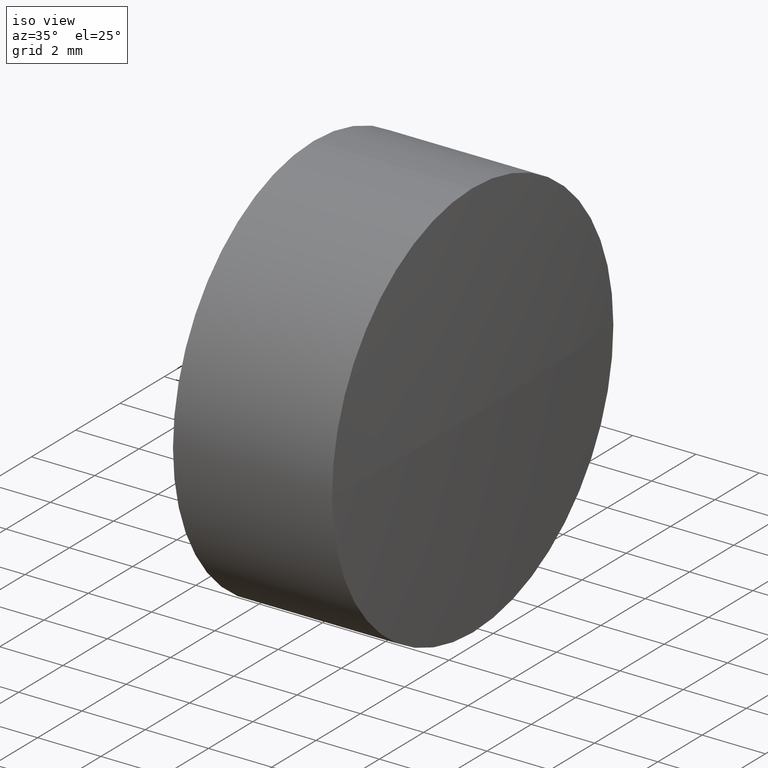
[diagram: clean part render]
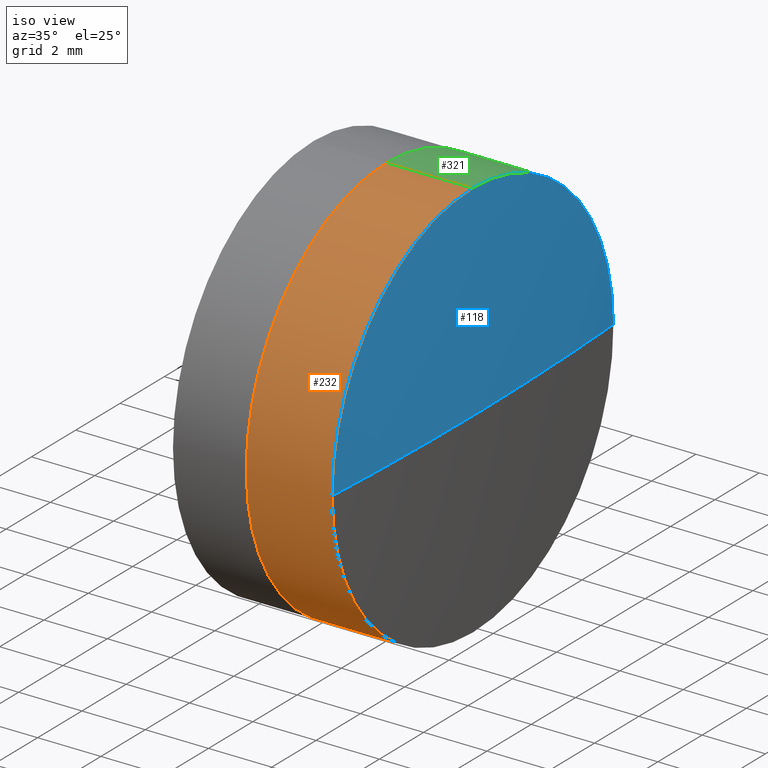
[diagram: same view with three faces highlighted in distinct colors, each labeled with its STEP entity id]
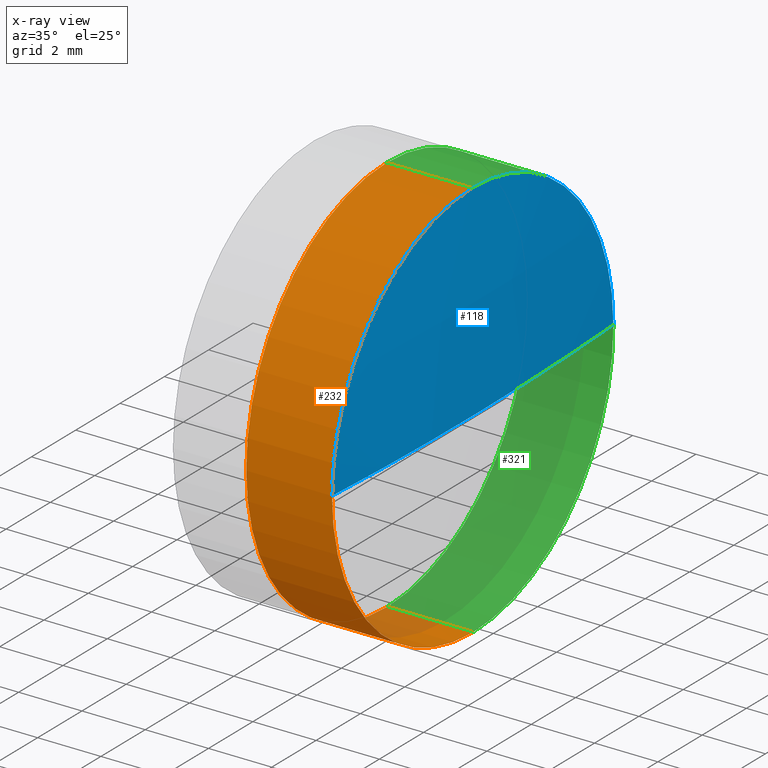
[diagram: x-ray of the same camera — body ghosted, the three highlighted faces saturated]
A machine part, iso view with three faces highlighted in distinct colors.
The next image is the same camera in x-ray (body ghosted, the three faces saturated) — at least one of them is partly hidden behind the body in this view.
Their STEP definitions:

[orange] entity #232 — the highlighted cylindrical surface (partial cylindrical patch) has radius 6.35 mm, axis along (-1, -0, -0).
#13 = AXIS2_PLACEMENT_3D ( 'NONE', #157, #184, #111 ) ;
#15 = DIRECTION ( 'NONE',  ( -1.000000000000000000, -2.232143574251894969E-18, -0.000000000000000000 ) ) ;
#16 = CIRCLE ( 'NONE', #96, 6.349999999999997868 ) ;
#28 = DIRECTION ( 'NONE',  ( -1.000000000000000000, -2.232143574251894969E-18, -0.000000000000000000 ) ) ;
#42 = VERTEX_POINT ( 'NONE', #152 ) ;
#76 = ORIENTED_EDGE ( 'NONE', *, *, #436, .T. ) ;
#81 = LINE ( 'NONE', #237, #393 ) ;
#82 = EDGE_CURVE ( 'NONE', #136, #261, #177, .T. ) ;
#94 = CARTESIAN_POINT ( 'NONE',  ( -40.11746922928519155, 29.21329600025099893, 6.349954804012000409 ) ) ;
#96 = AXIS2_PLACEMENT_3D ( 'NONE', #272, #402, #305 ) ;
#111 = DIRECTION ( 'NONE',  ( 0.000000000000000000, -0.003772917464198976330, 0.9999928825215749217 ) ) ;
#122 = ORIENTED_EDGE ( 'NONE', *, *, #242, .T. ) ;
#134 = CARTESIAN_POINT ( 'NONE',  ( -40.11746922928519155, 29.26121205204632858, -6.349954804012000409 ) ) ;
#136 = VERTEX_POINT ( 'NONE', #271 ) ;
#152 = CARTESIAN_POINT ( 'NONE',  ( -42.82922239068432191, 29.26121205204632858, -6.349954804012000409 ) ) ;
#153 = EDGE_CURVE ( 'NONE', #42, #136, #16, .T. ) ;
#157 = CARTESIAN_POINT ( 'NONE',  ( -40.11746922928519155, 29.23725402614866553, 0.000000000000000000 ) ) ;
#174 = DIRECTION ( 'NONE',  ( 0.000000000000000000, -0.003772917464198976330, 0.9999928825215749217 ) ) ;
#175 = LINE ( 'NONE', #283, #420 ) ;
#177 = CIRCLE ( 'NONE', #342, 6.349999999999997868 ) ;
#184 = DIRECTION ( 'NONE',  ( -1.000000000000000000, -2.232143574251894969E-18, -0.000000000000000000 ) ) ;
#197 = DIRECTION ( 'NONE',  ( 0.000000000000000000, -0.003772917464198976330, 0.9999928825215749217 ) ) ;
#202 = AXIS2_PLACEMENT_3D ( 'NONE', #210, #344, #174 ) ;
#210 = CARTESIAN_POINT ( 'NONE',  ( -40.11746922928519155, 29.23725402614866553, 0.000000000000000000 ) ) ;
#229 = FACE_OUTER_BOUND ( 'NONE', #349, .T. ) ;
#232 = ADVANCED_FACE ( 'NONE', ( #229 ), #404, .T. ) ;
#234 = CARTESIAN_POINT ( 'NONE',  ( -40.11746922928519865, 22.88729922213665091, -0.02395802589766392668 ) ) ;
#237 = CARTESIAN_POINT ( 'NONE',  ( -41.92046947869102524, 29.21329600025099893, 6.349954804011998633 ) ) ;
#238 = CIRCLE ( 'NONE', #13, 6.349999999999997868 ) ;
#242 = EDGE_CURVE ( 'NONE', #281, #261, #81, .T. ) ;
#255 = CARTESIAN_POINT ( 'NONE',  ( -42.82922239068432191, 29.23725402614866553, 0.000000000000000000 ) ) ;
#259 = ORIENTED_EDGE ( 'NONE', *, *, #371, .F. ) ;
#261 = VERTEX_POINT ( 'NONE', #373 ) ;
#270 = CARTESIAN_POINT ( 'NONE',  ( -41.92046947869102524, 29.23725402614866553, 0.000000000000000000 ) ) ;
#271 = CARTESIAN_POINT ( 'NONE',  ( -42.82922239068432191, 22.88729922213666157, -0.02395802589766386423 ) ) ;
#272 = CARTESIAN_POINT ( 'NONE',  ( -42.82922239068432191, 29.23725402614866553, 0.000000000000000000 ) ) ;
#281 = VERTEX_POINT ( 'NONE', #94 ) ;
#283 = CARTESIAN_POINT ( 'NONE',  ( -41.92046947869102524, 29.26121205204632858, -6.349954804011998633 ) ) ;
#284 = VERTEX_POINT ( 'NONE', #234 ) ;
#305 = DIRECTION ( 'NONE',  ( 0.000000000000000000, -0.003772917464198976330, 0.9999928825215749217 ) ) ;
#327 = CIRCLE ( 'NONE', #202, 6.349999999999997868 ) ;
#328 = DIRECTION ( 'NONE',  ( 0.000000000000000000, -0.003772917464198976330, 0.9999928825215749217 ) ) ;
#341 = DIRECTION ( 'NONE',  ( -1.000000000000000000, -2.232143574251894969E-18, -0.000000000000000000 ) ) ;
#342 = AXIS2_PLACEMENT_3D ( 'NONE', #255, #15, #328 ) ;
#344 = DIRECTION ( 'NONE',  ( -1.000000000000000000, -2.232143574251894969E-18, -0.000000000000000000 ) ) ;
#347 = VERTEX_POINT ( 'NONE', #134 ) ;
#349 = EDGE_LOOP ( 'NONE', ( #259, #76, #412, #122, #389, #417 ) ) ;
#367 = EDGE_CURVE ( 'NONE', #284, #281, #327, .T. ) ;
#371 = EDGE_CURVE ( 'NONE', #347, #42, #175, .T. ) ;
#373 = CARTESIAN_POINT ( 'NONE',  ( -42.82922239068432191, 29.21329600025099893, 6.349954804012000409 ) ) ;
#389 = ORIENTED_EDGE ( 'NONE', *, *, #82, .F. ) ;
#393 = VECTOR ( 'NONE', #410, 1000.000000000000000 ) ;
#402 = DIRECTION ( 'NONE',  ( -1.000000000000000000, -2.232143574251894969E-18, -0.000000000000000000 ) ) ;
#404 = CYLINDRICAL_SURFACE ( 'NONE', #445, 6.349999999999997868 ) ;
#410 = DIRECTION ( 'NONE',  ( -1.000000000000000000, -2.232143574251894969E-18, -0.000000000000000000 ) ) ;
#412 = ORIENTED_EDGE ( 'NONE', *, *, #367, .T. ) ;
#417 = ORIENTED_EDGE ( 'NONE', *, *, #153, .F. ) ;
#420 = VECTOR ( 'NONE', #341, 1000.000000000000000 ) ;
#436 = EDGE_CURVE ( 'NONE', #347, #284, #238, .T. ) ;
#445 = AXIS2_PLACEMENT_3D ( 'NONE', #270, #28, #197 ) ;

[blue] entity #118 — the highlighted spherical surface has radius 102.44 mm.
#6 = CIRCLE ( 'NONE', #426, 6.349999999999997868 ) ;
#8 = EDGE_CURVE ( 'NONE', #281, #33, #6, .T. ) ;
#24 = CARTESIAN_POINT ( 'NONE',  ( -40.11746922928519155, 29.23725402614866553, 0.000000000000000000 ) ) ;
#33 = VERTEX_POINT ( 'NONE', #264 ) ;
#34 = EDGE_CURVE ( 'NONE', #156, #33, #159, .T. ) ;
#44 = AXIS2_PLACEMENT_3D ( 'NONE', #231, #267, #64 ) ;
#47 = ORIENTED_EDGE ( 'NONE', *, *, #367, .F. ) ;
#53 = ORIENTED_EDGE ( 'NONE', *, *, #8, .F. ) ;
#61 = CARTESIAN_POINT ( 'NONE',  ( -39.92046947869101814, 29.23725402614866908, 2.366615641800109374E-17 ) ) ;
#64 = DIRECTION ( 'NONE',  ( 0.000000000000000000, 0.9999928825215749217, 0.003772917464198912579 ) ) ;
#89 = DIRECTION ( 'NONE',  ( 0.000000000000000000, -0.9999928825215750328, -0.003772917464198913447 ) ) ;
#94 = CARTESIAN_POINT ( 'NONE',  ( -40.11746922928519155, 29.21329600025099893, 6.349954804012000409 ) ) ;
#106 = DIRECTION ( 'NONE',  ( -8.421693473894630932E-21, 0.003772917464199035745, -0.9999928825215750328 ) ) ;
#118 = ADVANCED_FACE ( 'NONE', ( #369 ), #366, .T. ) ;
#129 = CIRCLE ( 'NONE', #249, 102.4400000000000261 ) ;
#156 = VERTEX_POINT ( 'NONE', #61 ) ;
#159 = CIRCLE ( 'NONE', #401, 102.4399999999999977 ) ;
#174 = DIRECTION ( 'NONE',  ( 0.000000000000000000, -0.003772917464198976330, 0.9999928825215749217 ) ) ;
#178 = ORIENTED_EDGE ( 'NONE', *, *, #385, .F. ) ;
#192 = DIRECTION ( 'NONE',  ( 0.000000000000000000, -0.003772917464198976330, 0.9999928825215749217 ) ) ;
#202 = AXIS2_PLACEMENT_3D ( 'NONE', #210, #344, #174 ) ;
#210 = CARTESIAN_POINT ( 'NONE',  ( -40.11746922928519155, 29.23725402614866553, 0.000000000000000000 ) ) ;
#224 = ORIENTED_EDGE ( 'NONE', *, *, #34, .T. ) ;
#227 = CARTESIAN_POINT ( 'NONE',  ( -142.3604694786910159, 29.23725402614866553, 0.000000000000000000 ) ) ;
#231 = CARTESIAN_POINT ( 'NONE',  ( -142.3604694786910159, 29.23725402614866553, 0.000000000000000000 ) ) ;
#234 = CARTESIAN_POINT ( 'NONE',  ( -40.11746922928519865, 22.88729922213665091, -0.02395802589766392668 ) ) ;
#249 = AXIS2_PLACEMENT_3D ( 'NONE', #279, #106, #307 ) ;
#264 = CARTESIAN_POINT ( 'NONE',  ( -40.11746922928519865, 35.58720883016067660, 0.02395802589766314605 ) ) ;
#267 = DIRECTION ( 'NONE',  ( -8.421693473894357089E-21, 0.003772917464198912579, -0.9999928825215749217 ) ) ;
#279 = CARTESIAN_POINT ( 'NONE',  ( -142.3604694786910159, 29.23725402614866553, 0.000000000000000000 ) ) ;
#281 = VERTEX_POINT ( 'NONE', #94 ) ;
#284 = VERTEX_POINT ( 'NONE', #234 ) ;
#307 = DIRECTION ( 'NONE',  ( 0.000000000000000000, 0.9999928825215750328, 0.003772917464199034877 ) ) ;
#327 = CIRCLE ( 'NONE', #202, 6.349999999999997868 ) ;
#332 = DIRECTION ( 'NONE',  ( 8.421693473894358594E-21, -0.003772917464198913447, 0.9999928825215750328 ) ) ;
#344 = DIRECTION ( 'NONE',  ( -1.000000000000000000, -2.232143574251894969E-18, -0.000000000000000000 ) ) ;
#366 = SPHERICAL_SURFACE ( 'NONE', #44, 102.4399999999999977 ) ;
#367 = EDGE_CURVE ( 'NONE', #284, #281, #327, .T. ) ;
#369 = FACE_OUTER_BOUND ( 'NONE', #414, .T. ) ;
#385 = EDGE_CURVE ( 'NONE', #156, #284, #129, .T. ) ;
#398 = DIRECTION ( 'NONE',  ( -1.000000000000000000, -2.232143574251894969E-18, -0.000000000000000000 ) ) ;
#401 = AXIS2_PLACEMENT_3D ( 'NONE', #227, #332, #89 ) ;
#414 = EDGE_LOOP ( 'NONE', ( #178, #224, #53, #47 ) ) ;
#426 = AXIS2_PLACEMENT_3D ( 'NONE', #24, #398, #192 ) ;

[green] entity #321 — the highlighted cylindrical surface (partial cylindrical patch) has radius 6.35 mm, axis along (-1, -0, -0).
#6 = CIRCLE ( 'NONE', #426, 6.349999999999997868 ) ;
#8 = EDGE_CURVE ( 'NONE', #281, #33, #6, .T. ) ;
#18 = CARTESIAN_POINT ( 'NONE',  ( -42.82922239068432191, 29.23725402614866553, 0.000000000000000000 ) ) ;
#19 = AXIS2_PLACEMENT_3D ( 'NONE', #348, #277, #172 ) ;
#24 = CARTESIAN_POINT ( 'NONE',  ( -40.11746922928519155, 29.23725402614866553, 0.000000000000000000 ) ) ;
#31 = DIRECTION ( 'NONE',  ( -1.000000000000000000, -2.232143574251894969E-18, -0.000000000000000000 ) ) ;
#33 = VERTEX_POINT ( 'NONE', #264 ) ;
#35 = AXIS2_PLACEMENT_3D ( 'NONE', #18, #295, #432 ) ;
#41 = EDGE_CURVE ( 'NONE', #292, #42, #171, .T. ) ;
#42 = VERTEX_POINT ( 'NONE', #152 ) ;
#57 = DIRECTION ( 'NONE',  ( 0.000000000000000000, -0.003772917464198976330, 0.9999928825215749217 ) ) ;
#58 = EDGE_CURVE ( 'NONE', #33, #347, #262, .T. ) ;
#71 = CARTESIAN_POINT ( 'NONE',  ( -42.82922239068432191, 35.58720883016066239, 0.02395802589766309401 ) ) ;
#81 = LINE ( 'NONE', #237, #393 ) ;
#94 = CARTESIAN_POINT ( 'NONE',  ( -40.11746922928519155, 29.21329600025099893, 6.349954804012000409 ) ) ;
#105 = ORIENTED_EDGE ( 'NONE', *, *, #8, .T. ) ;
#112 = EDGE_CURVE ( 'NONE', #261, #292, #185, .T. ) ;
#134 = CARTESIAN_POINT ( 'NONE',  ( -40.11746922928519155, 29.26121205204632858, -6.349954804012000409 ) ) ;
#152 = CARTESIAN_POINT ( 'NONE',  ( -42.82922239068432191, 29.26121205204632858, -6.349954804012000409 ) ) ;
#169 = CYLINDRICAL_SURFACE ( 'NONE', #19, 6.349999999999997868 ) ;
#171 = CIRCLE ( 'NONE', #35, 6.349999999999997868 ) ;
#172 = DIRECTION ( 'NONE',  ( 0.000000000000000000, -0.003772917464198976330, 0.9999928825215749217 ) ) ;
#175 = LINE ( 'NONE', #283, #420 ) ;
#185 = CIRCLE ( 'NONE', #297, 6.349999999999997868 ) ;
#192 = DIRECTION ( 'NONE',  ( 0.000000000000000000, -0.003772917464198976330, 0.9999928825215749217 ) ) ;
#206 = AXIS2_PLACEMENT_3D ( 'NONE', #225, #363, #57 ) ;
#225 = CARTESIAN_POINT ( 'NONE',  ( -40.11746922928519155, 29.23725402614866553, 0.000000000000000000 ) ) ;
#237 = CARTESIAN_POINT ( 'NONE',  ( -41.92046947869102524, 29.21329600025099893, 6.349954804011998633 ) ) ;
#241 = EDGE_LOOP ( 'NONE', ( #447, #252, #320, #311, #380, #105 ) ) ;
#242 = EDGE_CURVE ( 'NONE', #281, #261, #81, .T. ) ;
#252 = ORIENTED_EDGE ( 'NONE', *, *, #371, .T. ) ;
#261 = VERTEX_POINT ( 'NONE', #373 ) ;
#262 = CIRCLE ( 'NONE', #206, 6.349999999999997868 ) ;
#264 = CARTESIAN_POINT ( 'NONE',  ( -40.11746922928519865, 35.58720883016067660, 0.02395802589766314605 ) ) ;
#277 = DIRECTION ( 'NONE',  ( -1.000000000000000000, -2.232143574251894969E-18, -0.000000000000000000 ) ) ;
#281 = VERTEX_POINT ( 'NONE', #94 ) ;
#283 = CARTESIAN_POINT ( 'NONE',  ( -41.92046947869102524, 29.26121205204632858, -6.349954804011998633 ) ) ;
#292 = VERTEX_POINT ( 'NONE', #71 ) ;
#295 = DIRECTION ( 'NONE',  ( -1.000000000000000000, -2.232143574251894969E-18, -0.000000000000000000 ) ) ;
#297 = AXIS2_PLACEMENT_3D ( 'NONE', #322, #31, #442 ) ;
#311 = ORIENTED_EDGE ( 'NONE', *, *, #112, .F. ) ;
#316 = FACE_OUTER_BOUND ( 'NONE', #241, .T. ) ;
#320 = ORIENTED_EDGE ( 'NONE', *, *, #41, .F. ) ;
#321 = ADVANCED_FACE ( 'NONE', ( #316 ), #169, .T. ) ;
#322 = CARTESIAN_POINT ( 'NONE',  ( -42.82922239068432191, 29.23725402614866553, 0.000000000000000000 ) ) ;
#341 = DIRECTION ( 'NONE',  ( -1.000000000000000000, -2.232143574251894969E-18, -0.000000000000000000 ) ) ;
#347 = VERTEX_POINT ( 'NONE', #134 ) ;
#348 = CARTESIAN_POINT ( 'NONE',  ( -41.92046947869102524, 29.23725402614866553, 0.000000000000000000 ) ) ;
#363 = DIRECTION ( 'NONE',  ( -1.000000000000000000, -2.232143574251894969E-18, -0.000000000000000000 ) ) ;
#371 = EDGE_CURVE ( 'NONE', #347, #42, #175, .T. ) ;
#373 = CARTESIAN_POINT ( 'NONE',  ( -42.82922239068432191, 29.21329600025099893, 6.349954804012000409 ) ) ;
#380 = ORIENTED_EDGE ( 'NONE', *, *, #242, .F. ) ;
#393 = VECTOR ( 'NONE', #410, 1000.000000000000000 ) ;
#398 = DIRECTION ( 'NONE',  ( -1.000000000000000000, -2.232143574251894969E-18, -0.000000000000000000 ) ) ;
#410 = DIRECTION ( 'NONE',  ( -1.000000000000000000, -2.232143574251894969E-18, -0.000000000000000000 ) ) ;
#420 = VECTOR ( 'NONE', #341, 1000.000000000000000 ) ;
#426 = AXIS2_PLACEMENT_3D ( 'NONE', #24, #398, #192 ) ;
#432 = DIRECTION ( 'NONE',  ( 0.000000000000000000, -0.003772917464198976330, 0.9999928825215749217 ) ) ;
#442 = DIRECTION ( 'NONE',  ( 0.000000000000000000, -0.003772917464198976330, 0.9999928825215749217 ) ) ;
#447 = ORIENTED_EDGE ( 'NONE', *, *, #58, .T. ) ;